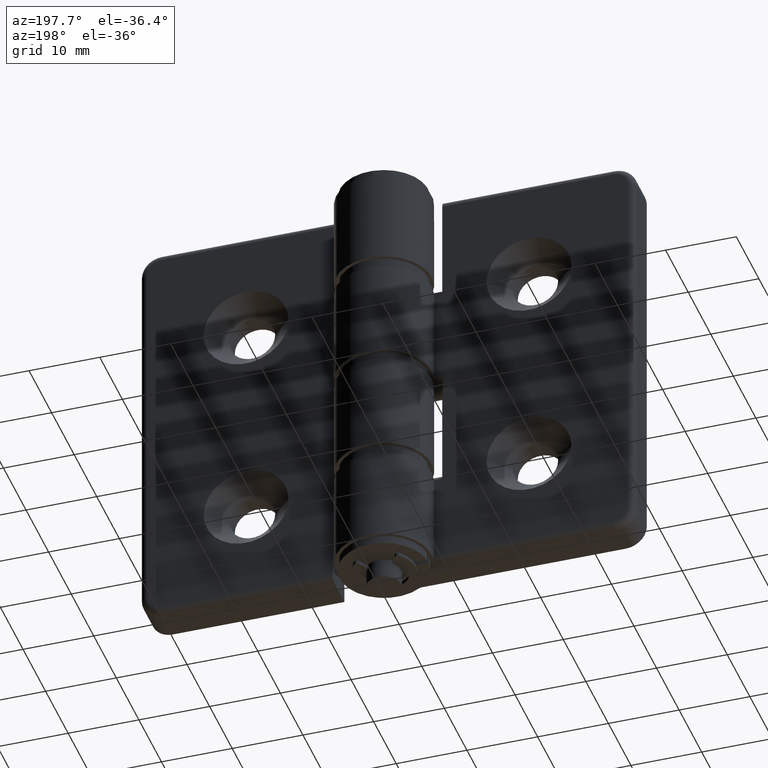
[diagram: clean part render]
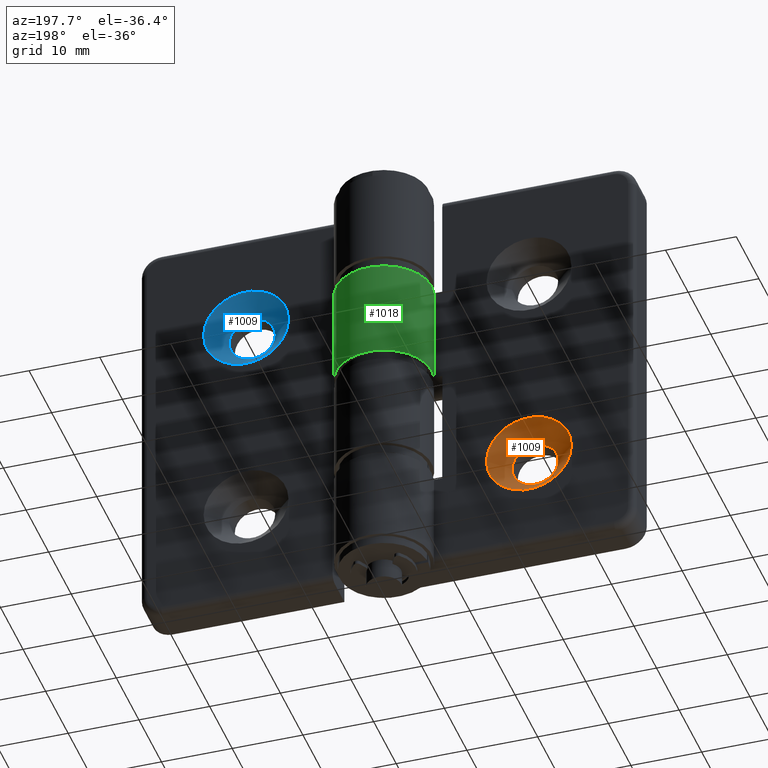
[diagram: same view with three faces highlighted in distinct colors, each labeled with its STEP entity id]
A machine part, auxiliary view with three faces highlighted in distinct colors.
Their STEP definitions:

[orange] entity #1009 — the highlighted conical surface has half-angle 45 deg.
#71=CONICAL_SURFACE('',#1092,4.625,45.);
#78=FACE_BOUND('',#200,.T.);
#134=FACE_OUTER_BOUND('',#199,.T.);
#199=EDGE_LOOP('',(#771));
#200=EDGE_LOOP('',(#772));
#423=CIRCLE('',#1091,6.);
#424=CIRCLE('',#1093,3.25);
#502=VERTEX_POINT('',#1648);
#503=VERTEX_POINT('',#1651);
#608=EDGE_CURVE('',#502,#502,#423,.T.);
#609=EDGE_CURVE('',#503,#503,#424,.T.);
#771=ORIENTED_EDGE('',*,*,#608,.F.);
#772=ORIENTED_EDGE('',*,*,#609,.F.);
#1009=ADVANCED_FACE('',(#134,#78),#71,.F.);
#1091=AXIS2_PLACEMENT_3D('',#1649,#1287,#1288);
#1092=AXIS2_PLACEMENT_3D('',#1650,#1289,#1290);
#1093=AXIS2_PLACEMENT_3D('',#1652,#1291,#1292);
#1287=DIRECTION('center_axis',(2.22044604925031E-16,-1.,0.));
#1288=DIRECTION('ref_axis',(1.,2.22044604925031E-16,3.12404772976441E-16));
#1289=DIRECTION('center_axis',(-2.22044604925031E-16,1.,0.));
#1290=DIRECTION('ref_axis',(1.,2.22044604925031E-16,3.12404772976441E-16));
#1291=DIRECTION('center_axis',(-2.22044604925031E-16,1.,0.));
#1292=DIRECTION('ref_axis',(1.,2.22044604925031E-16,3.12404772976441E-16));
#1648=CARTESIAN_POINT('',(-14.,5.2,-45.));
#1649=CARTESIAN_POINT('Origin',(-20.,5.2,-45.));
#1650=CARTESIAN_POINT('Origin',(-20.,3.825,-45.));
#1651=CARTESIAN_POINT('',(-16.75,2.45,-45.));
#1652=CARTESIAN_POINT('Origin',(-20.,2.44999999999999,-45.));

[blue] entity #1009 — the highlighted conical surface has half-angle 45 deg.
#71=CONICAL_SURFACE('',#1092,4.625,45.);
#78=FACE_BOUND('',#200,.T.);
#134=FACE_OUTER_BOUND('',#199,.T.);
#199=EDGE_LOOP('',(#771));
#200=EDGE_LOOP('',(#772));
#423=CIRCLE('',#1091,6.);
#424=CIRCLE('',#1093,3.25);
#502=VERTEX_POINT('',#1648);
#503=VERTEX_POINT('',#1651);
#608=EDGE_CURVE('',#502,#502,#423,.T.);
#609=EDGE_CURVE('',#503,#503,#424,.T.);
#771=ORIENTED_EDGE('',*,*,#608,.F.);
#772=ORIENTED_EDGE('',*,*,#609,.F.);
#1009=ADVANCED_FACE('',(#134,#78),#71,.F.);
#1091=AXIS2_PLACEMENT_3D('',#1649,#1287,#1288);
#1092=AXIS2_PLACEMENT_3D('',#1650,#1289,#1290);
#1093=AXIS2_PLACEMENT_3D('',#1652,#1291,#1292);
#1287=DIRECTION('center_axis',(2.22044604925031E-16,-1.,0.));
#1288=DIRECTION('ref_axis',(1.,2.22044604925031E-16,3.12404772976441E-16));
#1289=DIRECTION('center_axis',(-2.22044604925031E-16,1.,0.));
#1290=DIRECTION('ref_axis',(1.,2.22044604925031E-16,3.12404772976441E-16));
#1291=DIRECTION('center_axis',(-2.22044604925031E-16,1.,0.));
#1292=DIRECTION('ref_axis',(1.,2.22044604925031E-16,3.12404772976441E-16));
#1648=CARTESIAN_POINT('',(-14.,5.2,-45.));
#1649=CARTESIAN_POINT('Origin',(-20.,5.2,-45.));
#1650=CARTESIAN_POINT('Origin',(-20.,3.825,-45.));
#1651=CARTESIAN_POINT('',(-16.75,2.45,-45.));
#1652=CARTESIAN_POINT('Origin',(-20.,2.44999999999999,-45.));

[green] entity #1018 — the highlighted cylindrical surface (partial cylindrical patch) has radius 6.75 mm, axis along (0, 0, -1).
#143=FACE_OUTER_BOUND('',#215,.T.);
#215=EDGE_LOOP('',(#803,#804,#805,#806));
#282=LINE('',#1628,#355);
#285=LINE('',#1638,#358);
#355=VECTOR('',#1271,14.1);
#358=VECTOR('',#1280,14.1);
#426=CIRCLE('',#1099,6.75);
#430=CIRCLE('',#1105,6.75);
#492=VERTEX_POINT('',#1625);
#493=VERTEX_POINT('',#1627);
#496=VERTEX_POINT('',#1635);
#497=VERTEX_POINT('',#1637);
#597=EDGE_CURVE('',#493,#492,#282,.T.);
#602=EDGE_CURVE('',#497,#496,#285,.T.);
#611=EDGE_CURVE('',#496,#493,#426,.T.);
#616=EDGE_CURVE('',#492,#497,#430,.T.);
#803=ORIENTED_EDGE('',*,*,#611,.T.);
#804=ORIENTED_EDGE('',*,*,#597,.T.);
#805=ORIENTED_EDGE('',*,*,#616,.T.);
#806=ORIENTED_EDGE('',*,*,#602,.T.);
#975=CYLINDRICAL_SURFACE('',#1109,6.75);
#1018=ADVANCED_FACE('',(#143),#975,.T.);
#1099=AXIS2_PLACEMENT_3D('',#1659,#1303,#1304);
#1105=AXIS2_PLACEMENT_3D('',#1668,#1316,#1317);
#1109=AXIS2_PLACEMENT_3D('',#1674,#1325,#1326);
#1271=DIRECTION('',(0.,0.,-1.));
#1280=DIRECTION('',(0.,0.,1.));
#1303=DIRECTION('center_axis',(-1.53134210293125E-16,0.,-1.));
#1304=DIRECTION('ref_axis',(-1.,0.,0.));
#1316=DIRECTION('center_axis',(0.,0.,1.));
#1317=DIRECTION('ref_axis',(-1.,0.,0.));
#1325=DIRECTION('center_axis',(0.,0.,-1.));
#1326=DIRECTION('ref_axis',(-1.,0.,0.));
#1625=CARTESIAN_POINT('',(2.46519032881566E-31,0.,-29.3));
#1627=CARTESIAN_POINT('',(2.46519032881566E-31,0.,-15.2));
#1628=CARTESIAN_POINT('',(2.46519032881566E-31,0.,0.));
#1635=CARTESIAN_POINT('',(-6.56962708226274,5.2,-15.2));
#1637=CARTESIAN_POINT('',(-6.56962708226274,5.2,-29.3));
#1638=CARTESIAN_POINT('',(-6.56962708226274,5.2,0.));
#1659=CARTESIAN_POINT('Origin',(-2.22044604925031E-15,6.75,-15.2));
#1668=CARTESIAN_POINT('Origin',(-2.22044604925031E-15,6.75,-29.3));
#1674=CARTESIAN_POINT('Origin',(-2.22044604925031E-15,6.75,0.));